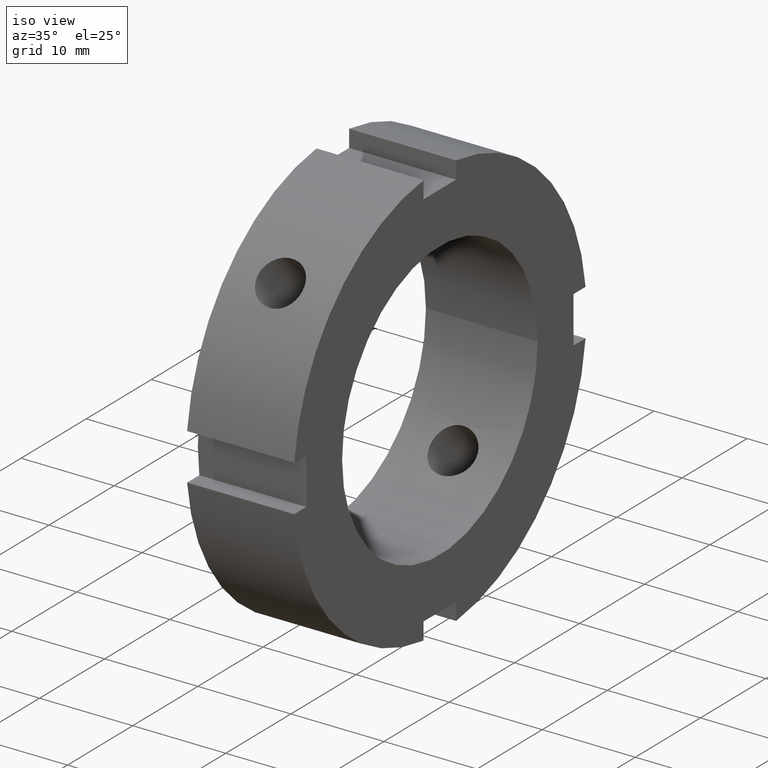
[diagram: clean part render]
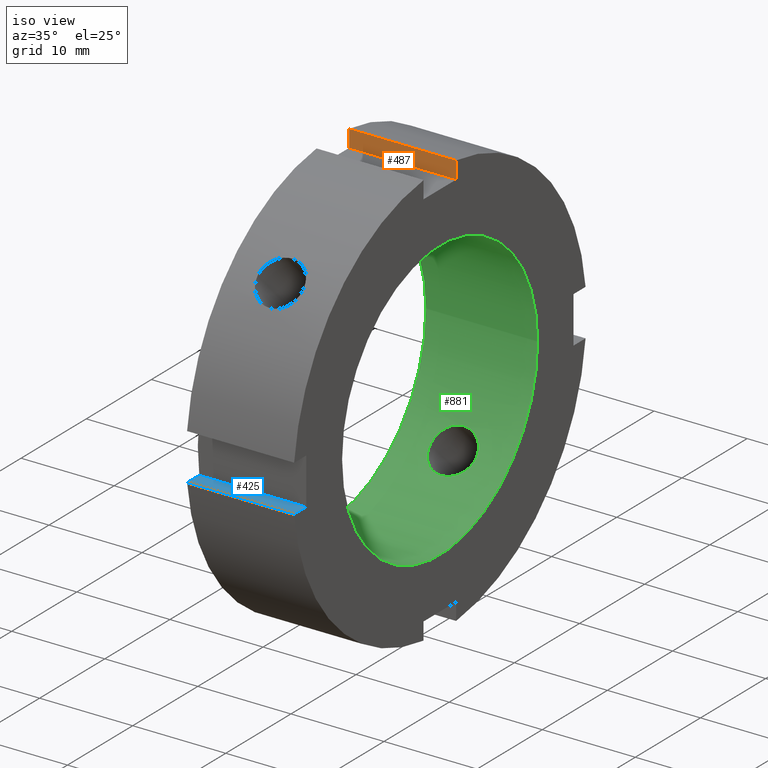
[diagram: same view with three faces highlighted in distinct colors, each labeled with its STEP entity id]
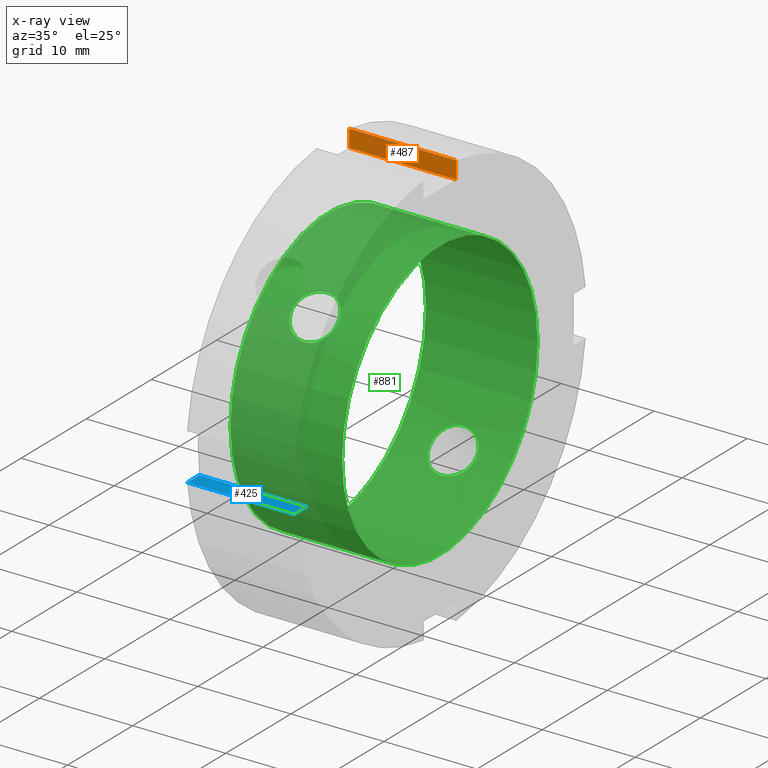
[diagram: x-ray of the same camera — body ghosted, the three highlighted faces saturated]
A machine part, iso view with three faces highlighted in distinct colors.
The next image is the same camera in x-ray (body ghosted, the three faces saturated) — at least one of them is partly hidden behind the body in this view.
Their STEP definitions:

[orange] entity #487 — the highlighted planar face has unit normal (0, 1, 0).
#448=CARTESIAN_POINT('',(11.999999999999996,2.500000000000000,20.499999999999993));
#449=DIRECTION('',(0.0,1.0,0.0));
#450=DIRECTION('',(-1.0,0.0,0.0));
#451=AXIS2_PLACEMENT_3D('',#448,#449,#450);
#452=PLANE('',#451);
#453=CARTESIAN_POINT('',(0.499999999999996,2.500000000000000,20.499999999999993));
#454=VERTEX_POINT('',#453);
#455=CARTESIAN_POINT('',(0.499999999999994,2.500000000000000,22.360679774997894));
#456=VERTEX_POINT('',#455);
#457=CARTESIAN_POINT('',(0.499999999999996,2.500000000000000,20.499999999999993));
#458=DIRECTION('',(0.0,0.0,1.0));
#459=VECTOR('',#458,1.860679774997898);
#460=LINE('',#457,#459);
#461=EDGE_CURVE('',#454,#456,#460,.T.);
#462=ORIENTED_EDGE('',*,*,#461,.F.);
#463=CARTESIAN_POINT('',(11.999999999999996,2.500000000000000,20.499999999999993));
#464=VERTEX_POINT('',#463);
#465=CARTESIAN_POINT('',(11.999999999999996,2.500000000000000,20.499999999999993));
#466=DIRECTION('',(-1.0,0.0,0.0));
#467=VECTOR('',#466,11.500000000000002);
#468=LINE('',#465,#467);
#469=EDGE_CURVE('',#464,#454,#468,.T.);
#470=ORIENTED_EDGE('',*,*,#469,.F.);
#471=CARTESIAN_POINT('',(11.999999999999996,2.500000000000000,22.360679774997894));
#472=VERTEX_POINT('',#471);
#473=CARTESIAN_POINT('',(11.999999999999996,2.500000000000001,22.360679774997891));
#474=DIRECTION('',(0.0,0.0,-1.0));
#475=VECTOR('',#474,1.860679774997898);
#476=LINE('',#473,#475);
#477=EDGE_CURVE('',#472,#464,#476,.T.);
#478=ORIENTED_EDGE('',*,*,#477,.F.);
#479=CARTESIAN_POINT('',(0.499999999999994,2.500000000000000,22.360679774997894));
#480=DIRECTION('',(1.0,0.0,0.0));
#481=VECTOR('',#480,11.500000000000004);
#482=LINE('',#479,#481);
#483=EDGE_CURVE('',#456,#472,#482,.T.);
#484=ORIENTED_EDGE('',*,*,#483,.F.);
#485=EDGE_LOOP('',(#462,#470,#478,#484));
#486=FACE_OUTER_BOUND('',#485,.T.);
#487=ADVANCED_FACE('',(#486),#452,.F.);

[blue] entity #425 — the highlighted planar face has unit normal (0, 0, -1).
#386=CARTESIAN_POINT('',(11.999999999999996,-22.499999999999996,-2.499999999999996));
#387=DIRECTION('',(0.0,0.0,-1.0));
#388=DIRECTION('',(1.0,0.0,0.0));
#389=AXIS2_PLACEMENT_3D('',#386,#387,#388);
#390=PLANE('',#389);
#391=CARTESIAN_POINT('',(0.499999999999994,-22.360679774997894,-2.499999999999996));
#392=VERTEX_POINT('',#391);
#393=CARTESIAN_POINT('',(0.499999999999996,-20.499999999999993,-2.499999999999996));
#394=VERTEX_POINT('',#393);
#395=CARTESIAN_POINT('',(0.499999999999996,-22.360679774997894,-2.499999999999996));
#396=DIRECTION('',(0.0,1.0,0.0));
#397=VECTOR('',#396,1.860679774997902);
#398=LINE('',#395,#397);
#399=EDGE_CURVE('',#392,#394,#398,.T.);
#400=ORIENTED_EDGE('',*,*,#399,.F.);
#401=CARTESIAN_POINT('',(11.999999999999996,-22.360679774997894,-2.499999999999996));
#402=VERTEX_POINT('',#401);
#403=CARTESIAN_POINT('',(11.999999999999996,-22.360679774997894,-2.499999999999996));
#404=DIRECTION('',(-1.0,0.0,0.0));
#405=VECTOR('',#404,11.500000000000004);
#406=LINE('',#403,#405);
#407=EDGE_CURVE('',#402,#392,#406,.T.);
#408=ORIENTED_EDGE('',*,*,#407,.F.);
#409=CARTESIAN_POINT('',(11.999999999999996,-20.499999999999993,-2.499999999999996));
#410=VERTEX_POINT('',#409);
#411=CARTESIAN_POINT('',(11.999999999999996,-20.499999999999993,-2.499999999999997));
#412=DIRECTION('',(0.0,-1.0,0.0));
#413=VECTOR('',#412,1.860679774997902);
#414=LINE('',#411,#413);
#415=EDGE_CURVE('',#410,#402,#414,.T.);
#416=ORIENTED_EDGE('',*,*,#415,.F.);
#417=CARTESIAN_POINT('',(11.999999999999996,-20.499999999999993,-2.499999999999996));
#418=DIRECTION('',(-1.0,0.0,0.0));
#419=VECTOR('',#418,11.500000000000002);
#420=LINE('',#417,#419);
#421=EDGE_CURVE('',#410,#394,#420,.T.);
#422=ORIENTED_EDGE('',*,*,#421,.T.);
#423=EDGE_LOOP('',(#400,#408,#416,#422));
#424=FACE_OUTER_BOUND('',#423,.T.);
#425=ADVANCED_FACE('',(#424),#390,.F.);

[green] entity #881 — the highlighted cylindrical surface (bore or boss wall) has radius 15 mm, axis along (1, 0, 0).
#114=CARTESIAN_POINT('',(5.999999999999996,-12.201590226015600,8.724746182921344));
#115=VERTEX_POINT('',#114);
#116=CARTESIAN_POINT('',(5.999999999999996,-12.201590226015600,8.724746182921347));
#117=CARTESIAN_POINT('',(6.309298978327274,-12.201590226015600,8.724746182921347));
#118=CARTESIAN_POINT('',(6.638825035218891,-12.165367077746911,8.776102368125626));
#119=CARTESIAN_POINT('',(7.244378735772020,-12.015025907051752,8.980828535065390));
#120=CARTESIAN_POINT('',(7.520455233834589,-11.900521299087350,9.133769711757392));
#121=CARTESIAN_POINT('',(7.956383369383215,-11.628240230684955,9.477984124867884));
#122=CARTESIAN_POINT('',(8.145500364382311,-11.452128029674068,9.692306357282742));
#123=CARTESIAN_POINT('',(8.396573985712529,-11.050863713432230,10.147435642291995));
#124=CARTESIAN_POINT('',(8.458499999999997,-10.825303664427196,10.387899771169216));
#125=CARTESIAN_POINT('',(8.458499999999996,-10.387899771169211,10.825303664427203));
#126=CARTESIAN_POINT('',(8.396573985712527,-10.147435642291988,11.050863713432237));
#127=CARTESIAN_POINT('',(8.145500364382309,-9.692306357282735,11.452128029674073));
#128=CARTESIAN_POINT('',(7.956383369383215,-9.477984124867881,11.628240230684970));
#129=CARTESIAN_POINT('',(7.520455233834587,-9.133769711757383,11.900521299087359));
#130=CARTESIAN_POINT('',(7.244378735772017,-8.980828535065383,12.015025907051758));
#131=CARTESIAN_POINT('',(6.638825035218887,-8.776102368125621,12.165367077746916));
#132=CARTESIAN_POINT('',(6.309298978327274,-8.724746182921342,12.201590226015607));
#133=CARTESIAN_POINT('',(5.690701021672719,-8.724746182921342,12.201590226015607));
#134=CARTESIAN_POINT('',(5.361174964781106,-8.776102368125621,12.165367077746916));
#135=CARTESIAN_POINT('',(4.755621264227975,-8.980828535065385,12.015025907051758));
#136=CARTESIAN_POINT('',(4.479544766165406,-9.133769711757385,11.900521299087359));
#137=CARTESIAN_POINT('',(4.043616630616778,-9.477984124867881,11.628240230684970));
#138=CARTESIAN_POINT('',(3.854499635617684,-9.692306357282734,11.452128029674075));
#139=CARTESIAN_POINT('',(3.603426014287465,-10.147435642291988,11.050863713432237));
#140=CARTESIAN_POINT('',(3.541499999999997,-10.387899771169211,10.825303664427201));
#141=CARTESIAN_POINT('',(3.541499999999997,-10.825303664427199,10.387899771169218));
#142=CARTESIAN_POINT('',(3.603426014287466,-11.050863713432236,10.147435642291995));
#143=CARTESIAN_POINT('',(3.854499635617683,-11.452128029674070,9.692306357282742));
#144=CARTESIAN_POINT('',(4.043616630616777,-11.628240230684959,9.477984124867884));
#145=CARTESIAN_POINT('',(4.479544766165404,-11.900521299087350,9.133769711757390));
#146=CARTESIAN_POINT('',(4.755621264227974,-12.015025907051754,8.980828535065390));
#147=CARTESIAN_POINT('',(5.361174964781106,-12.165367077746915,8.776102368125628));
#148=CARTESIAN_POINT('',(5.690701021672719,-12.201590226015600,8.724746182921347));
#149=CARTESIAN_POINT('',(5.999999999999996,-12.201590226015600,8.724746182921347));
#150=B_SPLINE_CURVE_WITH_KNOTS('',3,(#116,#117,#118,#119,#120,#121,#122,#123,#124,#125,#126,#127,#128,#129,#130,#131,#132,#133,#134,#135,#136,#137,#138,#139,#140,#141,#142,#143,#144,#145,#146,#147,#148,#149),.UNSPECIFIED.,.T.,.U.,(4,2,2,2,2,2,2,2,2,2,2,2,2,2,2,2,4),(0.0,0.092789693498184,0.185579386996367,0.278366764708403,0.371154142420438,0.463941520132473,0.556728897844509,0.649518591342692,0.742308284840876,0.835097978339059,0.927887671837243,1.020675049549278,1.113462427261314,1.206249804973349,1.299037182685384,1.391826876183568,1.484616569681752),.UNSPECIFIED.);
#151=EDGE_CURVE('',#115,#115,#150,.T.);
#202=CARTESIAN_POINT('',(5.999999999999996,8.724746182921342,-12.201590226015602));
#203=VERTEX_POINT('',#202);
#204=CARTESIAN_POINT('',(5.999999999999996,8.724746182921344,-12.201590226015602));
#205=CARTESIAN_POINT('',(5.690701021672719,8.724746182921344,-12.201590226015602));
#206=CARTESIAN_POINT('',(5.361174964781106,8.776102368125621,-12.165367077746916));
#207=CARTESIAN_POINT('',(4.755621264227975,8.980828535065385,-12.015025907051758));
#208=CARTESIAN_POINT('',(4.479544766165406,9.133769711757385,-11.900521299087359));
#209=CARTESIAN_POINT('',(4.043616630616778,9.477984124867881,-11.628240230684970));
#210=CARTESIAN_POINT('',(3.854499635617683,9.692306357282735,-11.452128029674073));
#211=CARTESIAN_POINT('',(3.603426014287465,10.147435642291988,-11.050863713432237));
#212=CARTESIAN_POINT('',(3.541499999999997,10.387899771169211,-10.825303664427203));
#213=CARTESIAN_POINT('',(3.541499999999997,10.825303664427198,-10.387899771169218));
#214=CARTESIAN_POINT('',(3.603426014287465,11.050863713432230,-10.147435642291997));
#215=CARTESIAN_POINT('',(3.854499635617681,11.452128029674068,-9.692306357282744));
#216=CARTESIAN_POINT('',(4.043616630616777,11.628240230684959,-9.477984124867886));
#217=CARTESIAN_POINT('',(4.479544766165404,11.900521299087350,-9.133769711757390));
#218=CARTESIAN_POINT('',(4.755621264227973,12.015025907051752,-8.980828535065390));
#219=CARTESIAN_POINT('',(5.361174964781102,12.165367077746911,-8.776102368125626));
#220=CARTESIAN_POINT('',(5.690701021672718,12.201590226015602,-8.724746182921344));
#221=CARTESIAN_POINT('',(6.309298978327275,12.201590226015602,-8.724746182921344));
#222=CARTESIAN_POINT('',(6.638825035218891,12.165367077746911,-8.776102368125626));
#223=CARTESIAN_POINT('',(7.244378735772019,12.015025907051752,-8.980828535065388));
#224=CARTESIAN_POINT('',(7.520455233834587,11.900521299087350,-9.133769711757392));
#225=CARTESIAN_POINT('',(7.956383369383215,11.628240230684959,-9.477984124867886));
#226=CARTESIAN_POINT('',(8.145500364382311,11.452128029674068,-9.692306357282742));
#227=CARTESIAN_POINT('',(8.396573985712529,11.050863713432230,-10.147435642291995));
#228=CARTESIAN_POINT('',(8.458499999999997,10.825303664427196,-10.387899771169218));
#229=CARTESIAN_POINT('',(8.458499999999996,10.387899771169211,-10.825303664427203));
#230=CARTESIAN_POINT('',(8.396573985712529,10.147435642291992,-11.050863713432237));
#231=CARTESIAN_POINT('',(8.145500364382311,9.692306357282735,-11.452128029674073));
#232=CARTESIAN_POINT('',(7.956383369383215,9.477984124867879,-11.628240230684970));
#233=CARTESIAN_POINT('',(7.520455233834587,9.133769711757385,-11.900521299087359));
#234=CARTESIAN_POINT('',(7.244378735772017,8.980828535065383,-12.015025907051758));
#235=CARTESIAN_POINT('',(6.638825035218887,8.776102368125621,-12.165367077746916));
#236=CARTESIAN_POINT('',(6.309298978327274,8.724746182921344,-12.201590226015602));
#237=CARTESIAN_POINT('',(5.999999999999997,8.724746182921344,-12.201590226015602));
#238=B_SPLINE_CURVE_WITH_KNOTS('',3,(#204,#205,#206,#207,#208,#209,#210,#211,#212,#213,#214,#215,#216,#217,#218,#219,#220,#221,#222,#223,#224,#225,#226,#227,#228,#229,#230,#231,#232,#233,#234,#235,#236,#237),.UNSPECIFIED.,.T.,.U.,(4,2,2,2,2,2,2,2,2,2,2,2,2,2,2,2,4),(0.0,0.092789693498183,0.185579386996367,0.278366764708402,0.371154142420438,0.463941520132473,0.556728897844508,0.649518591342692,0.742308284840876,0.835097978339059,0.927887671837243,1.020675049549278,1.113462427261313,1.206249804973349,1.299037182685384,1.391826876183568,1.484616569681751),.UNSPECIFIED.);
#239=EDGE_CURVE('',#203,#203,#238,.T.);
#712=CARTESIAN_POINT('',(11.999999999999996,15.0,0.0));
#713=VERTEX_POINT('',#712);
#714=CARTESIAN_POINT('',(11.999999999999996,0.0,0.0));
#715=DIRECTION('',(1.0,0.0,0.0));
#716=DIRECTION('',(0.0,1.0,0.0));
#717=AXIS2_PLACEMENT_3D('',#714,#715,#716);
#718=CIRCLE('',#717,15.0);
#719=EDGE_CURVE('',#713,#713,#718,.T.);
#805=CARTESIAN_POINT('',(-3.698651E-015,15.0,0.0));
#806=VERTEX_POINT('',#805);
#807=CARTESIAN_POINT('',(-3.699298E-015,0.0,0.0));
#808=DIRECTION('',(1.0,0.0,0.0));
#809=DIRECTION('',(0.0,1.0,0.0));
#810=AXIS2_PLACEMENT_3D('',#807,#808,#809);
#811=CIRCLE('',#810,15.0);
#812=EDGE_CURVE('',#806,#806,#811,.T.);
#864=CARTESIAN_POINT('',(5.999999999999996,0.0,0.0));
#865=DIRECTION('',(1.0,0.0,0.0));
#866=DIRECTION('',(0.0,1.0,0.0));
#867=AXIS2_PLACEMENT_3D('',#864,#865,#866);
#868=CYLINDRICAL_SURFACE('',#867,15.0);
#869=ORIENTED_EDGE('',*,*,#812,.F.);
#870=EDGE_LOOP('',(#869));
#871=FACE_OUTER_BOUND('',#870,.T.);
#872=ORIENTED_EDGE('',*,*,#151,.T.);
#873=EDGE_LOOP('',(#872));
#874=FACE_BOUND('',#873,.T.);
#875=ORIENTED_EDGE('',*,*,#239,.T.);
#876=EDGE_LOOP('',(#875));
#877=FACE_BOUND('',#876,.T.);
#878=ORIENTED_EDGE('',*,*,#719,.T.);
#879=EDGE_LOOP('',(#878));
#880=FACE_BOUND('',#879,.T.);
#881=ADVANCED_FACE('',(#871,#874,#877,#880),#868,.F.);